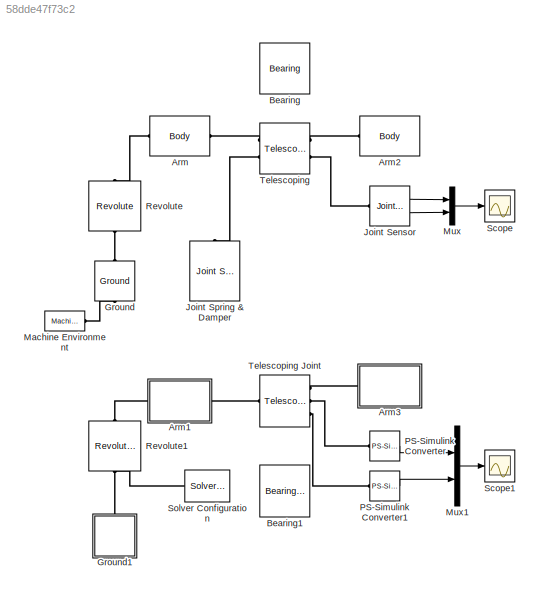
MODEL slx_58dde47f73c2
KIND model
CONFIG AbsTol = 1e-4
CONFIG EnableMultiTasking = on
CONFIG FixedStep = auto
CONFIG MaxStep = auto
CONFIG MinStep = auto
CONFIG PreLoadFcn = Arm_length = 0.5;
CONFIG RelTol = 1e-3
CONFIG SampleTimeConstraint = Unconstrained
CONFIG Solver = ode15s
CONFIG SolverName = ode15s
CONFIG StartTime = 0.0
CONFIG StopTime = 10.0
BLOCK [Reference] Arm  REF=mblibv1/Bodies/Body
  Ports = [0, 0, 0, 0, 0, 1, 1]
  SourceBlock = mblibv1/Bodies/Body
  SourceProductBaseCode = MS
  SourceProductName = Simscape Multibody
  SourceType = Body
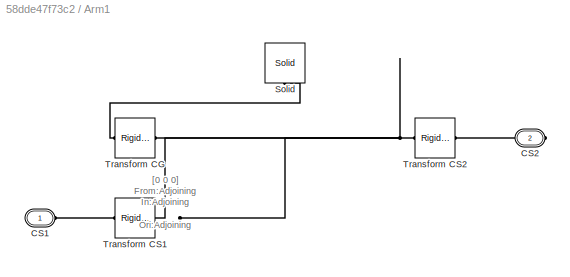
BLOCK [SubSystem] Arm1
  Ports = [0, 0, 0, 0, 0, 1, 1]
  RequestExecContextInheritance = off
  Variant = off
BLOCK [PMIOPort] Arm1/CS1
  Port = 1
  Side = Left
BLOCK [PMIOPort] Arm1/CS2
  Port = 2
  Side = Right
BLOCK [Reference] Arm1/Solid  REF=sm_lib/Body Elements/Solid
  Ports = [0, 0, 0, 0, 0, 0, 1]
  SourceBlock = sm_lib/Body Elements/Solid
  SourceProductBaseCode = MS
  SourceProductName = Simscape Multibody
  SourceType = Solid
BLOCK [Reference] Arm1/Transform CG  REF=sm_lib/Frames and
Transforms/Rigid
Transform
  Ports = [0, 0, 0, 0, 0, 1, 1]
  SourceBlock = sm_lib/Frames and\nTransforms/Rigid\nTransform
  SourceProductBaseCode = MS
  SourceProductName = Simscape Multibody
  SourceType = Rigid\nTransform
BLOCK [Reference] Arm1/Transform CS1  REF=sm_lib/Frames and
Transforms/Rigid
Transform
  Ports = [0, 0, 0, 0, 0, 1, 1]
  SourceBlock = sm_lib/Frames and\nTransforms/Rigid\nTransform
  SourceProductBaseCode = MS
  SourceProductName = Simscape Multibody
  SourceType = Rigid\nTransform
BLOCK [Reference] Arm1/Transform CS2  REF=sm_lib/Frames and
Transforms/Rigid
Transform
  Ports = [0, 0, 0, 0, 0, 1, 1]
  SourceBlock = sm_lib/Frames and\nTransforms/Rigid\nTransform
  SourceProductBaseCode = MS
  SourceProductName = Simscape Multibody
  SourceType = Rigid\nTransform
BLOCK [Reference] Arm2  REF=mblibv1/Bodies/Body
  Ports = [0, 0, 0, 0, 0, 1, 1]
  SourceBlock = mblibv1/Bodies/Body
  SourceProductBaseCode = MS
  SourceProductName = Simscape Multibody
  SourceType = Body
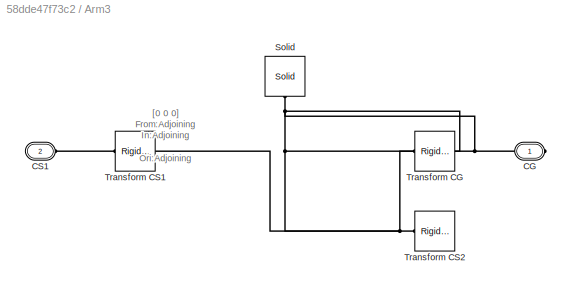
BLOCK [SubSystem] Arm3
  Ports = [0, 0, 0, 0, 0, 1, 1]
  RequestExecContextInheritance = off
  Variant = off
BLOCK [PMIOPort] Arm3/CG
  Port = 1
  Side = Right
BLOCK [PMIOPort] Arm3/CS1
  Port = 2
  Side = Left
BLOCK [Reference] Arm3/Solid  REF=sm_lib/Body Elements/Solid
  Ports = [0, 0, 0, 0, 0, 0, 1]
  SourceBlock = sm_lib/Body Elements/Solid
  SourceProductBaseCode = MS
  SourceProductName = Simscape Multibody
  SourceType = Solid
BLOCK [Reference] Arm3/Transform CG  REF=sm_lib/Frames and
Transforms/Rigid
Transform
  Ports = [0, 0, 0, 0, 0, 1, 1]
  SourceBlock = sm_lib/Frames and\nTransforms/Rigid\nTransform
  SourceProductBaseCode = MS
  SourceProductName = Simscape Multibody
  SourceType = Rigid\nTransform
BLOCK [Reference] Arm3/Transform CS1  REF=sm_lib/Frames and
Transforms/Rigid
Transform
  Ports = [0, 0, 0, 0, 0, 1, 1]
  SourceBlock = sm_lib/Frames and\nTransforms/Rigid\nTransform
  SourceProductBaseCode = MS
  SourceProductName = Simscape Multibody
  SourceType = Rigid\nTransform
BLOCK [Reference] Arm3/Transform CS2  REF=sm_lib/Frames and
Transforms/Rigid
Transform
  Ports = [0, 0, 0, 0, 0, 1, 1]
  SourceBlock = sm_lib/Frames and\nTransforms/Rigid\nTransform
  SourceProductBaseCode = MS
  SourceProductName = Simscape Multibody
  SourceType = Rigid\nTransform
BLOCK [Reference] Bearing  REF=mblibv1/Joints/Bearing
  Commented = on
  Ports = [0, 0, 0, 0, 0, 2, 2]
  SourceBlock = mblibv1/Joints/Bearing
  SourceProductBaseCode = MS
  SourceProductName = Simscape Multibody
  SourceType = Bearing
BLOCK [Reference] Bearing1  REF=sm_lib/Joints/Bearing Joint
  Commented = on
  Ports = [0, 0, 0, 0, 0, 1, 3]
  SourceBlock = sm_lib/Joints/Bearing Joint
  SourceProductBaseCode = MS
  SourceProductName = Simscape Multibody
  SourceType = Bearing Joint
BLOCK [Reference] Ground  REF=mblibv1/Bodies/Ground
  Ports = [0, 0, 0, 0, 0, 1, 1]
  SourceBlock = mblibv1/Bodies/Ground
  SourceProductBaseCode = MS
  SourceProductName = Simscape Multibody
  SourceType = Ground
  UserDataPersistent = on
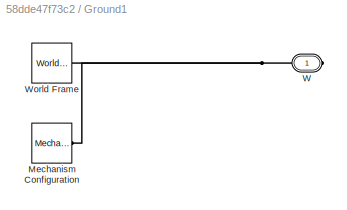
BLOCK [SubSystem] Ground1
  Ports = [0, 0, 0, 0, 0, 0, 1]
  RequestExecContextInheritance = off
  Variant = off
BLOCK [Reference] Ground1/Mechanism Configuration  REF=sm_lib/Utilities/Mechanism
Configuration
  Ports = [0, 0, 0, 0, 0, 0, 1]
  SourceBlock = sm_lib/Utilities/Mechanism\nConfiguration
  SourceProductBaseCode = MS
  SourceProductName = Simscape Multibody
  SourceType = Mechanism\nConfiguration
BLOCK [PMIOPort] Ground1/W
  Port = 1
  Side = Right
BLOCK [Reference] Ground1/World Frame  REF=sm_lib/Frames and
Transforms/World Frame
  Ports = [0, 0, 0, 0, 0, 0, 1]
  SourceBlock = sm_lib/Frames and\nTransforms/World Frame
  SourceProductBaseCode = MS
  SourceProductName = Simscape Multibody
  SourceType = World Frame
BLOCK [Reference] Joint Sensor  REF=mblibv1/Sensors & 
Actuators/Joint Sensor
  Ports = [0, 2, 0, 0, 0, 1]
  SourceBlock = mblibv1/Sensors & \nActuators/Joint Sensor
  SourceProductBaseCode = MS
  SourceProductName = Simscape Multibody
  SourceType = Joint Sensor
BLOCK [Reference] Joint Spring & Damper  REF=mblibv1/Force 
Elements/Joint Spring & Damper
  Ports = [0, 0, 0, 0, 0, 1]
  SourceBlock = mblibv1/Force \nElements/Joint Spring & Damper
  SourceProductBaseCode = MS
  SourceProductName = Simscape Multibody
  SourceType = Joint Spring & Damper
BLOCK [Reference] Machine Environment  REF=mblibv1/Bodies/Machine
Environment
  Ports = [0, 0, 0, 0, 0, 0, 1]
  SourceBlock = mblibv1/Bodies/Machine\nEnvironment
  SourceProductBaseCode = MS
  SourceProductName = Simscape Multibody
  SourceType = Machine Environment
  Tag = Factory ground
BLOCK [Mux] Mux
  DisplayOption = bar
  Inputs = 2
  Ports = [2, 1]
BLOCK [Mux] Mux1
  DisplayOption = bar
  Inputs = 2
  Ports = [2, 1]
BLOCK [Reference] PS-Simulink Converter  REF=nesl_utility/PS-Simulink
Converter
  Ports = [0, 1, 0, 0, 0, 1]
  SourceBlock = nesl_utility/PS-Simulink\nConverter
  SourceProductBaseCode = SS
  SourceProductName = Simscape
  SourceType = PS-Simulink\nConverter
BLOCK [Reference] PS-Simulink Converter1  REF=nesl_utility/PS-Simulink
Converter
  Ports = [0, 1, 0, 0, 0, 1]
  SourceBlock = nesl_utility/PS-Simulink\nConverter
  SourceProductBaseCode = SS
  SourceProductName = Simscape
  SourceType = PS-Simulink\nConverter
BLOCK [Reference] Revolute  REF=mblibv1/Joints/Revolute
  Ports = [0, 0, 0, 0, 0, 1, 1]
  SourceBlock = mblibv1/Joints/Revolute
  SourceProductBaseCode = MS
  SourceProductName = Simscape Multibody
  SourceType = Revolute
BLOCK [Reference] Revolute1  REF=sm_lib/Joints/Revolute Joint
  Ports = [0, 0, 0, 0, 0, 1, 1]
  SourceBlock = sm_lib/Joints/Revolute Joint
  SourceProductBaseCode = MS
  SourceProductName = Simscape Multibody
  SourceType = Revolute Joint
BLOCK [Scope] Scope
  NumInputPorts = 1
  Ports = [1]
  ScopeSpecificationString = Simulink.scopes.TimeScopeBlockCfg('CurrentConfiguration', extmgr.ConfigurationSet(extmgr.Configuration('Core','General UI',true),extmgr.Configuration('Core','Source UI',true),extmgr.Configuration('Sources','WiredSimulink',true,'DataLoggingLimitDataPoints',true,'DataLoggingSaveFormat','Array','DataLoggingDecimation','1'),extmgr.Configuration('Visuals','Time Domain',true,'DisplayPropertyDefaults',st...<+875ch>
BLOCK [Scope] Scope1
  NumInputPorts = 1
  Ports = [1]
  ScopeSpecificationString = Simulink.scopes.TimeScopeBlockCfg('CurrentConfiguration', extmgr.ConfigurationSet(extmgr.Configuration('Core','General UI',true),extmgr.Configuration('Core','Source UI',true),extmgr.Configuration('Sources','WiredSimulink',true,'DataLoggingVariableName','ScopeData1','DataLoggingLimitDataPoints',true,'DataLoggingSaveFormat','Array','DataLoggingDecimation','1'),extmgr.Configuration('Visuals','Time Do...<+913ch>
BLOCK [Reference] Solver Configuration  REF=nesl_utility/Solver
Configuration
  Ports = [0, 0, 0, 0, 0, 0, 1]
  SourceBlock = nesl_utility/Solver\nConfiguration
  SourceProductBaseCode = SS
  SourceProductName = Simscape
  SourceType = Solver\nConfiguration
BLOCK [Reference] Telescoping  REF=mblibv1/Joints/Telescoping
  Ports = [0, 0, 0, 0, 0, 2, 2]
  SourceBlock = mblibv1/Joints/Telescoping
  SourceProductBaseCode = MS
  SourceProductName = Simscape Multibody
  SourceType = Telescoping
BLOCK [Reference] Telescoping Joint  REF=sm_lib/Joints/Telescoping
Joint
  Ports = [0, 0, 0, 0, 0, 1, 3]
  SourceBlock = sm_lib/Joints/Telescoping\nJoint
  SourceProductBaseCode = MS
  SourceProductName = Simscape Multibody
  SourceType = Telescoping\nJoint
ANNOTATION Arm1: [0 0 0] From:Adjoining In:Adjoining Ori:Adjoining
ANNOTATION Arm3: [0 0 0] From:Adjoining In:Adjoining Ori:Adjoining
LINE Joint Sensor:1 -> Mux:1
LINE Joint Sensor:2 -> Mux:2
LINE Mux1:1 -> Scope1:1
LINE Mux:1 -> Scope:1
LINE PS-Simulink Converter1:1 -> Mux1:2
LINE PS-Simulink Converter:1 -> Mux1:1
PLINE Arm1/CS1:RConn1 -- Arm1/Transform CS1:LConn1
PLINE Arm1/CS2:RConn1 -- Arm1/Transform CS2:RConn1
PLINE Arm1/Solid:RConn1 -- Arm1/Transform CG:RConn1
PNET net1: Arm1/Transform CG:LConn1 -- Arm1/Transform CS1:RConn1 -- Arm1/Transform CS2:LConn1
PLINE Arm1:LConn1 -- Revolute1:RConn1
PLINE Arm1:RConn1 -- Telescoping Joint:LConn1
PLINE Arm2:LConn1 -- Telescoping:RConn1
PNET net2: Arm3/CG:RConn1 -- Arm3/Solid:RConn1 -- Arm3/Transform CG:RConn1
PLINE Arm3/CS1:RConn1 -- Arm3/Transform CS1:LConn1
PNET net3: Arm3/Transform CG:LConn1 -- Arm3/Transform CS1:RConn1 -- Arm3/Transform CS2:LConn1
PLINE Arm3:LConn1 -- Telescoping Joint:RConn1
PLINE Arm:LConn1 -- Revolute:RConn1
PLINE Arm:RConn1 -- Telescoping:LConn1
PNET net4: Ground1/Mechanism Configuration:RConn1 -- Ground1/W:RConn1 -- Ground1/World Frame:RConn1
PNET net5: Ground1:RConn1 -- Revolute1:LConn1 -- Solver Configuration:RConn1
PLINE Ground:LConn1 -- Machine Environment:RConn1
PLINE Ground:RConn1 -- Revolute:LConn1
PLINE Joint Sensor:LConn1 -- Telescoping:RConn2
PLINE Joint Spring & Damper:LConn1 -- Telescoping:LConn2
PLINE PS-Simulink Converter1:LConn1 -- Telescoping Joint:RConn3
PLINE PS-Simulink Converter:LConn1 -- Telescoping Joint:RConn2
note: PNET lines group multi-terminal physical nets as a canonical sorted terminal list (undirected conserving connections); 2-terminal nets keep the pairwise PLINE form
